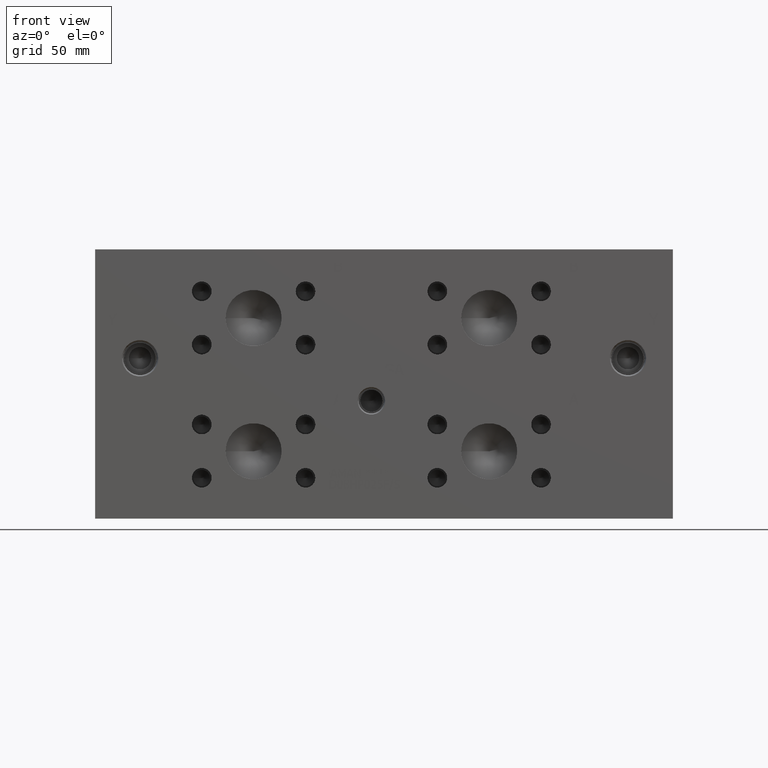
[diagram: clean part render]
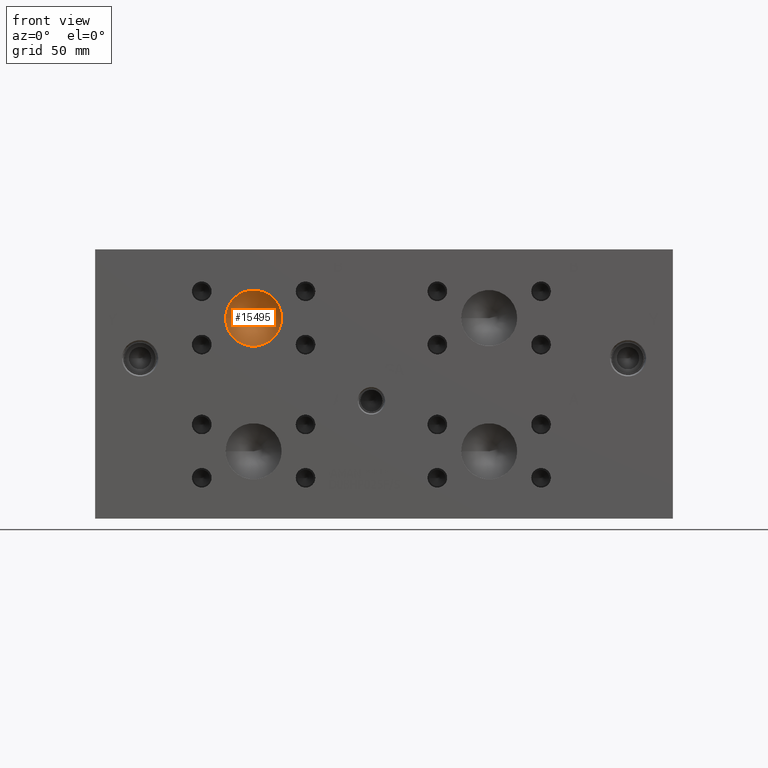
[diagram: same view with one face highlighted and labeled with its STEP entity id]
A machine part, front view. The second image highlights one B-rep face of the part: STEP entity #15495.
In plain terms, the highlighted conical surface has half-angle 60 deg.
Its self-contained STEP definition (entity closure, byte-faithful):
#46=CONICAL_SURFACE('',#16408,7.9375,1.0471975511966);
#489=CIRCLE('',#16409,15.875);
#490=CIRCLE('',#16410,15.875);
#2057=FACE_OUTER_BOUND('',#2993,.T.);
#2993=EDGE_LOOP('',(#13052,#13053,#13054,#13055));
#4419=LINE('',#26267,#5750);
#5750=VECTOR('',#19481,7.9375);
#7120=VERTEX_POINT('',#26263);
#7121=VERTEX_POINT('',#26264);
#7122=VERTEX_POINT('',#26266);
#9199=EDGE_CURVE('',#7120,#7121,#489,.T.);
#9200=EDGE_CURVE('',#7121,#7122,#4419,.T.);
#9201=EDGE_CURVE('',#7121,#7120,#490,.T.);
#13052=ORIENTED_EDGE('',*,*,#9199,.T.);
#13053=ORIENTED_EDGE('',*,*,#9200,.T.);
#13054=ORIENTED_EDGE('',*,*,#9200,.F.);
#13055=ORIENTED_EDGE('',*,*,#9201,.T.);
#15495=ADVANCED_FACE('',(#2057),#46,.F.);
#16408=AXIS2_PLACEMENT_3D('',#26262,#19477,#19478);
#16409=AXIS2_PLACEMENT_3D('',#26265,#19479,#19480);
#16410=AXIS2_PLACEMENT_3D('',#26268,#19482,#19483);
#19477=DIRECTION('center_axis',(0.,-1.,0.));
#19478=DIRECTION('ref_axis',(1.,0.,0.));
#19479=DIRECTION('center_axis',(0.,-1.,0.));
#19480=DIRECTION('ref_axis',(1.,0.,0.));
#19481=DIRECTION('',(0.866025403784439,0.5,1.06057523872491E-16));
#19482=DIRECTION('center_axis',(0.,-1.,0.));
#19483=DIRECTION('ref_axis',(1.,0.,0.));
#26262=CARTESIAN_POINT('Origin',(89.6874,13.7481577616927,113.5126));
#26263=CARTESIAN_POINT('',(105.5624,9.16544,113.5126));
#26264=CARTESIAN_POINT('',(73.8124,9.16544,113.5126));
#26265=CARTESIAN_POINT('Origin',(89.6874,9.16544,113.5126));
#26266=CARTESIAN_POINT('',(89.6874,18.3308755233853,113.5126));
#26267=CARTESIAN_POINT('',(81.7499,13.7481577616927,113.5126));
#26268=CARTESIAN_POINT('Origin',(89.6874,9.16544,113.5126));